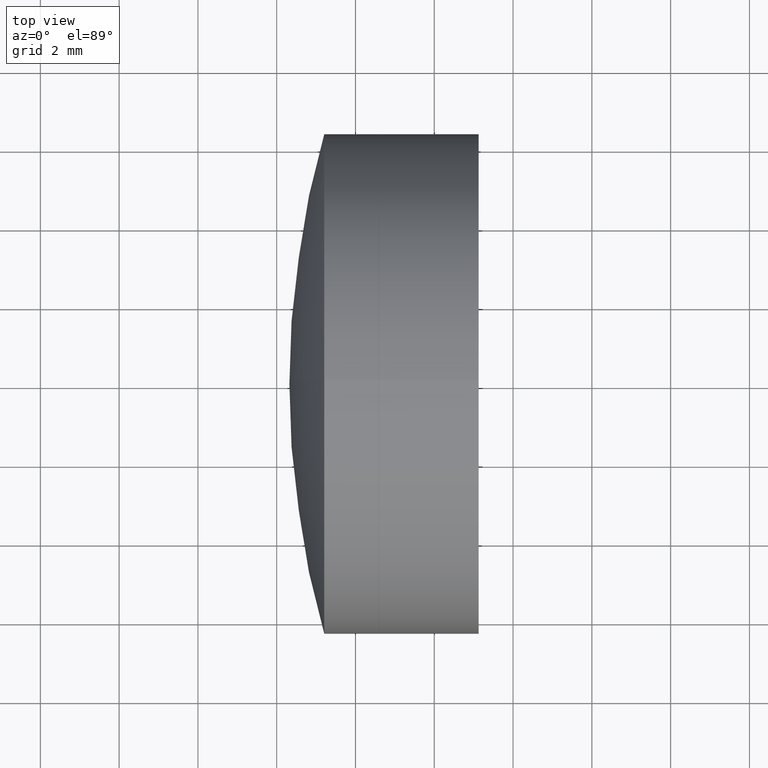
[diagram: clean part render]
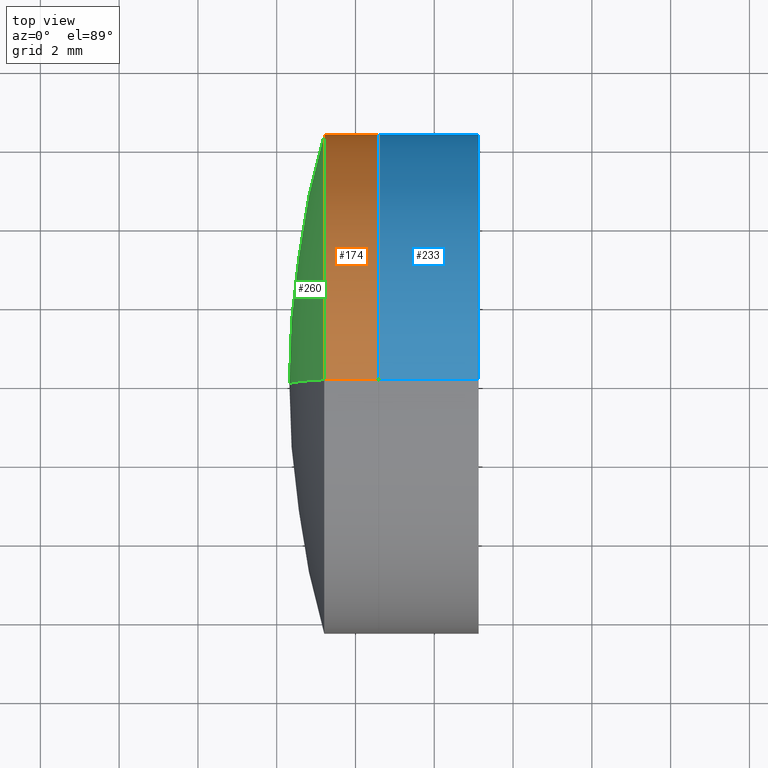
[diagram: same view with three faces highlighted in distinct colors, each labeled with its STEP entity id]
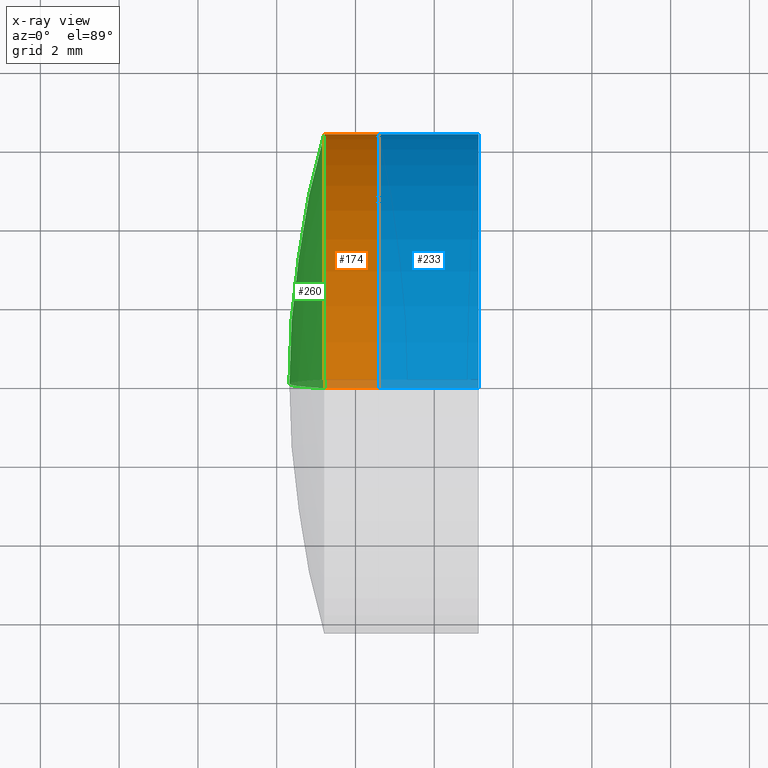
[diagram: x-ray of the same camera — body ghosted, the three highlighted faces saturated]
A machine part, top view with three faces highlighted in distinct colors.
The next image is the same camera in x-ray (body ghosted, the three faces saturated) — at least one of them is partly hidden behind the body in this view.
Their STEP definitions:

[orange] entity #174 — the highlighted cylindrical surface (partial cylindrical patch) has radius 6.35 mm, axis along (-1, -0, -0).
#1 = AXIS2_PLACEMENT_3D ( 'NONE', #180, #181, #120 ) ;
#10 = CARTESIAN_POINT ( 'NONE',  ( -0.8160621761658039000, 7.776507174585693100E-016, -6.350000000000000500 ) ) ;
#17 = CYLINDRICAL_SURFACE ( 'NONE', #1, 6.350000000000000500 ) ;
#20 = ORIENTED_EDGE ( 'NONE', *, *, #146, .F. ) ;
#31 = EDGE_CURVE ( 'NONE', #93, #101, #295, .T. ) ;
#45 = ORIENTED_EDGE ( 'NONE', *, *, #31, .T. ) ;
#54 = LINE ( 'NONE', #10, #65 ) ;
#65 = VECTOR ( 'NONE', #333, 1000.000000000000000 ) ;
#72 = EDGE_CURVE ( 'NONE', #101, #117, #54, .T. ) ;
#83 = EDGE_LOOP ( 'NONE', ( #45, #108, #122, #20 ) ) ;
#93 = VERTEX_POINT ( 'NONE', #273 ) ;
#96 = CARTESIAN_POINT ( 'NONE',  ( 38.58865659512439800, 7.776507174585693100E-016, -6.350000000000000500 ) ) ;
#101 = VERTEX_POINT ( 'NONE', #96 ) ;
#108 = ORIENTED_EDGE ( 'NONE', *, *, #72, .T. ) ;
#114 = DIRECTION ( 'NONE',  ( -1.000000000000000000, -0.0000000000000000000, -0.0000000000000000000 ) ) ;
#117 = VERTEX_POINT ( 'NONE', #334 ) ;
#120 = DIRECTION ( 'NONE',  ( 0.0000000000000000000, 0.0000000000000000000, 1.000000000000000000 ) ) ;
#121 = DIRECTION ( 'NONE',  ( 0.0000000000000000000, 0.0000000000000000000, 1.000000000000000000 ) ) ;
#122 = ORIENTED_EDGE ( 'NONE', *, *, #197, .F. ) ;
#139 = CARTESIAN_POINT ( 'NONE',  ( 37.20671594264951700, -7.776507174585689200E-016, 6.349999999999997900 ) ) ;
#140 = AXIS2_PLACEMENT_3D ( 'NONE', #148, #311, #286 ) ;
#146 = EDGE_CURVE ( 'NONE', #93, #206, #196, .T. ) ;
#148 = CARTESIAN_POINT ( 'NONE',  ( 38.58865659512439800, 0.0000000000000000000, 0.0000000000000000000 ) ) ;
#169 = CIRCLE ( 'NONE', #332, 6.350000000000000500 ) ;
#172 = CARTESIAN_POINT ( 'NONE',  ( 37.20671594264952400, 0.0000000000000000000, 0.0000000000000000000 ) ) ;
#174 = ADVANCED_FACE ( 'NONE', ( #230 ), #17, .T. ) ;
#180 = CARTESIAN_POINT ( 'NONE',  ( -0.8160621761658039000, 0.0000000000000000000, 0.0000000000000000000 ) ) ;
#181 = DIRECTION ( 'NONE',  ( -1.000000000000000000, -0.0000000000000000000, -0.0000000000000000000 ) ) ;
#196 = LINE ( 'NONE', #297, #249 ) ;
#197 = EDGE_CURVE ( 'NONE', #206, #117, #169, .T. ) ;
#206 = VERTEX_POINT ( 'NONE', #139 ) ;
#230 = FACE_OUTER_BOUND ( 'NONE', #83, .T. ) ;
#249 = VECTOR ( 'NONE', #114, 1000.000000000000000 ) ;
#273 = CARTESIAN_POINT ( 'NONE',  ( 38.58865659512439800, 0.0000000000000000000, 6.350000000000000500 ) ) ;
#286 = DIRECTION ( 'NONE',  ( 0.0000000000000000000, 0.0000000000000000000, 1.000000000000000000 ) ) ;
#295 = CIRCLE ( 'NONE', #140, 6.350000000000000500 ) ;
#297 = CARTESIAN_POINT ( 'NONE',  ( -0.8160621761658039000, 0.0000000000000000000, 6.350000000000000500 ) ) ;
#310 = DIRECTION ( 'NONE',  ( -1.000000000000000000, -0.0000000000000000000, -0.0000000000000000000 ) ) ;
#311 = DIRECTION ( 'NONE',  ( -1.000000000000000000, -0.0000000000000000000, -0.0000000000000000000 ) ) ;
#332 = AXIS2_PLACEMENT_3D ( 'NONE', #172, #310, #121 ) ;
#333 = DIRECTION ( 'NONE',  ( -1.000000000000000000, -0.0000000000000000000, -0.0000000000000000000 ) ) ;
#334 = CARTESIAN_POINT ( 'NONE',  ( 37.20671594264951700, 0.0000000000000000000, -6.349999999999997000 ) ) ;

[blue] entity #233 — the highlighted cylindrical surface (partial cylindrical patch) has radius 6.35 mm, axis along (-1, -0, -0).
#21 = CARTESIAN_POINT ( 'NONE',  ( -0.5519199926577972300, 7.776507174585664600E-016, -6.349999999999977400 ) ) ;
#24 = ORIENTED_EDGE ( 'NONE', *, *, #132, .T. ) ;
#30 = LINE ( 'NONE', #21, #61 ) ;
#38 = CARTESIAN_POINT ( 'NONE',  ( 41.12501739380486000, 0.0000000000000000000, -6.350000000000002300 ) ) ;
#39 = DIRECTION ( 'NONE',  ( 0.0000000000000000000, 0.0000000000000000000, 1.000000000000000000 ) ) ;
#43 = VERTEX_POINT ( 'NONE', #173 ) ;
#49 = EDGE_CURVE ( 'NONE', #43, #50, #64, .T. ) ;
#50 = VERTEX_POINT ( 'NONE', #38 ) ;
#59 = CIRCLE ( 'NONE', #300, 6.349999999999977400 ) ;
#61 = VECTOR ( 'NONE', #89, 1000.000000000000000 ) ;
#64 = CIRCLE ( 'NONE', #219, 6.349999999999976600 ) ;
#66 = DIRECTION ( 'NONE',  ( -1.000000000000000000, -0.0000000000000000000, -0.0000000000000000000 ) ) ;
#75 = AXIS2_PLACEMENT_3D ( 'NONE', #215, #248, #320 ) ;
#89 = DIRECTION ( 'NONE',  ( -1.000000000000000000, -0.0000000000000000000, -0.0000000000000000000 ) ) ;
#91 = CARTESIAN_POINT ( 'NONE',  ( -0.5519199926577972300, 0.0000000000000000000, 6.349999999999977400 ) ) ;
#100 = CARTESIAN_POINT ( 'NONE',  ( 38.58865659512440500, 0.0000000000000000000, -6.349999999999976600 ) ) ;
#130 = VECTOR ( 'NONE', #307, 1000.000000000000000 ) ;
#132 = EDGE_CURVE ( 'NONE', #50, #246, #30, .T. ) ;
#143 = DIRECTION ( 'NONE',  ( 0.0000000000000000000, 0.0000000000000000000, 1.000000000000000000 ) ) ;
#154 = VERTEX_POINT ( 'NONE', #240 ) ;
#166 = EDGE_CURVE ( 'NONE', #154, #246, #59, .T. ) ;
#173 = CARTESIAN_POINT ( 'NONE',  ( 41.12501739380486000, -7.776507174585695100E-016, 6.350000000000002300 ) ) ;
#183 = EDGE_CURVE ( 'NONE', #43, #154, #344, .T. ) ;
#191 = EDGE_LOOP ( 'NONE', ( #252, #24, #306, #192 ) ) ;
#192 = ORIENTED_EDGE ( 'NONE', *, *, #183, .F. ) ;
#202 = FACE_OUTER_BOUND ( 'NONE', #191, .T. ) ;
#215 = CARTESIAN_POINT ( 'NONE',  ( -0.5519199926577972300, 0.0000000000000000000, 0.0000000000000000000 ) ) ;
#219 = AXIS2_PLACEMENT_3D ( 'NONE', #226, #66, #39 ) ;
#223 = DIRECTION ( 'NONE',  ( -1.000000000000000000, -0.0000000000000000000, -0.0000000000000000000 ) ) ;
#226 = CARTESIAN_POINT ( 'NONE',  ( 41.12501739380485300, 0.0000000000000000000, 0.0000000000000000000 ) ) ;
#233 = ADVANCED_FACE ( 'NONE', ( #202 ), #254, .T. ) ;
#240 = CARTESIAN_POINT ( 'NONE',  ( 38.58865659512440500, -7.776507174585663600E-016, 6.349999999999978300 ) ) ;
#246 = VERTEX_POINT ( 'NONE', #100 ) ;
#248 = DIRECTION ( 'NONE',  ( -1.000000000000000000, -0.0000000000000000000, -0.0000000000000000000 ) ) ;
#252 = ORIENTED_EDGE ( 'NONE', *, *, #49, .T. ) ;
#254 = CYLINDRICAL_SURFACE ( 'NONE', #75, 6.349999999999977400 ) ;
#256 = CARTESIAN_POINT ( 'NONE',  ( 38.58865659512440500, 0.0000000000000000000, 0.0000000000000000000 ) ) ;
#300 = AXIS2_PLACEMENT_3D ( 'NONE', #256, #223, #143 ) ;
#306 = ORIENTED_EDGE ( 'NONE', *, *, #166, .F. ) ;
#307 = DIRECTION ( 'NONE',  ( -1.000000000000000000, -0.0000000000000000000, -0.0000000000000000000 ) ) ;
#320 = DIRECTION ( 'NONE',  ( 0.0000000000000000000, 0.0000000000000000000, 1.000000000000000000 ) ) ;
#344 = LINE ( 'NONE', #91, #130 ) ;

[green] entity #260 — the highlighted spherical surface has radius 23.23 mm.
#22 = DIRECTION ( 'NONE',  ( 0.0000000000000000000, 1.224646799147353200E-016, -1.000000000000000000 ) ) ;
#27 = CIRCLE ( 'NONE', #128, 23.23000000000000400 ) ;
#28 = CARTESIAN_POINT ( 'NONE',  ( 59.55197047241490100, 0.0000000000000000000, 1.024019535267817800E-015 ) ) ;
#36 = DIRECTION ( 'NONE',  ( -0.0000000000000000000, -1.000000000000000000, -0.0000000000000000000 ) ) ;
#63 = DIRECTION ( 'NONE',  ( 0.0000000000000000000, 0.0000000000000000000, -1.000000000000000000 ) ) ;
#81 = SPHERICAL_SURFACE ( 'NONE', #112, 23.23000000000000400 ) ;
#109 = AXIS2_PLACEMENT_3D ( 'NONE', #331, #179, #22 ) ;
#111 = DIRECTION ( 'NONE',  ( 0.0000000000000000000, 0.0000000000000000000, 1.000000000000000000 ) ) ;
#112 = AXIS2_PLACEMENT_3D ( 'NONE', #250, #36, #63 ) ;
#117 = VERTEX_POINT ( 'NONE', #334 ) ;
#121 = DIRECTION ( 'NONE',  ( 0.0000000000000000000, 0.0000000000000000000, 1.000000000000000000 ) ) ;
#128 = AXIS2_PLACEMENT_3D ( 'NONE', #28, #163, #111 ) ;
#138 = VERTEX_POINT ( 'NONE', #227 ) ;
#139 = CARTESIAN_POINT ( 'NONE',  ( 37.20671594264951700, -7.776507174585689200E-016, 6.349999999999997900 ) ) ;
#153 = FACE_OUTER_BOUND ( 'NONE', #330, .T. ) ;
#162 = ORIENTED_EDGE ( 'NONE', *, *, #328, .F. ) ;
#163 = DIRECTION ( 'NONE',  ( 0.0000000000000000000, 1.000000000000000000, -0.0000000000000000000 ) ) ;
#169 = CIRCLE ( 'NONE', #332, 6.350000000000000500 ) ;
#172 = CARTESIAN_POINT ( 'NONE',  ( 37.20671594264952400, 0.0000000000000000000, 0.0000000000000000000 ) ) ;
#179 = DIRECTION ( 'NONE',  ( 0.0000000000000000000, -1.000000000000000000, -1.224646799147353200E-016 ) ) ;
#197 = EDGE_CURVE ( 'NONE', #206, #117, #169, .T. ) ;
#206 = VERTEX_POINT ( 'NONE', #139 ) ;
#216 = ORIENTED_EDGE ( 'NONE', *, *, #294, .T. ) ;
#227 = CARTESIAN_POINT ( 'NONE',  ( 36.32197047241489700, 0.0000000000000000000, -3.984077219418332500E-016 ) ) ;
#250 = CARTESIAN_POINT ( 'NONE',  ( 59.55197047241490100, 0.0000000000000000000, 1.024019535267817800E-015 ) ) ;
#260 = ADVANCED_FACE ( 'NONE', ( #153 ), #81, .T. ) ;
#268 = ORIENTED_EDGE ( 'NONE', *, *, #197, .T. ) ;
#294 = EDGE_CURVE ( 'NONE', #117, #138, #27, .T. ) ;
#308 = CIRCLE ( 'NONE', #109, 23.23000000000000400 ) ;
#310 = DIRECTION ( 'NONE',  ( -1.000000000000000000, -0.0000000000000000000, -0.0000000000000000000 ) ) ;
#328 = EDGE_CURVE ( 'NONE', #206, #138, #308, .T. ) ;
#330 = EDGE_LOOP ( 'NONE', ( #162, #268, #216 ) ) ;
#331 = CARTESIAN_POINT ( 'NONE',  ( 59.55197047241490100, 0.0000000000000000000, 1.024019535267817800E-015 ) ) ;
#332 = AXIS2_PLACEMENT_3D ( 'NONE', #172, #310, #121 ) ;
#334 = CARTESIAN_POINT ( 'NONE',  ( 37.20671594264951700, 0.0000000000000000000, -6.349999999999997000 ) ) ;